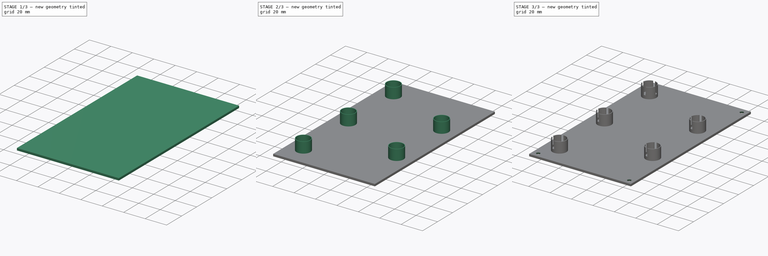
[diagram: build sequence overview — one tinted view per stage of 3, left to right]
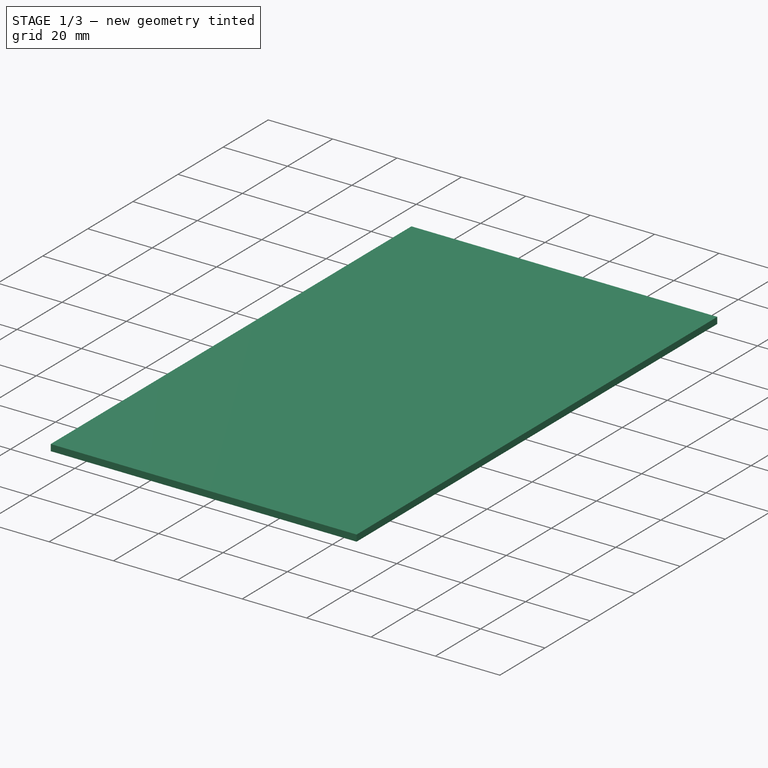
[diagram: stage 1 of 3 — iso view after this stage's code; geometry added in this stage tinted green]
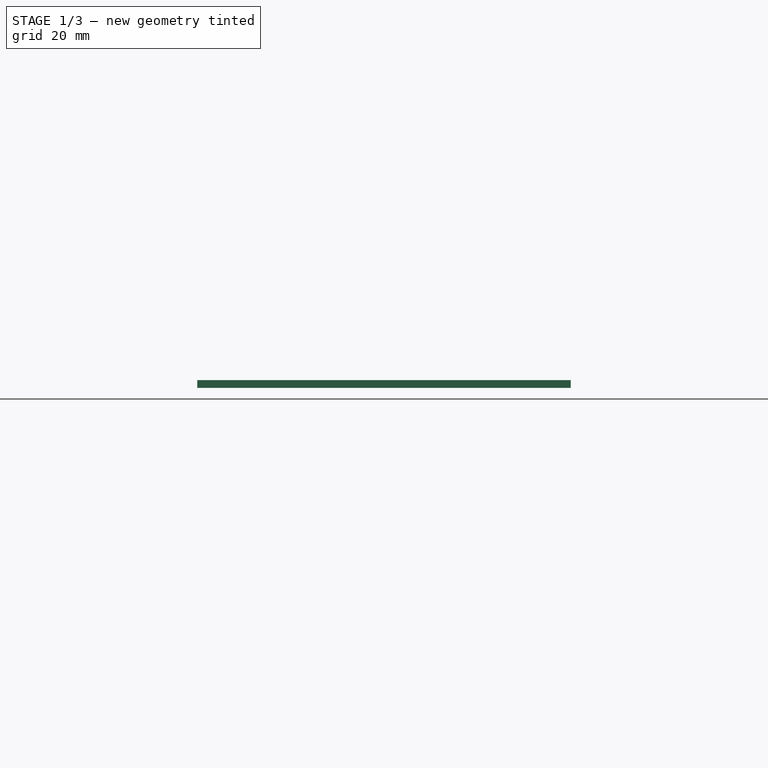
[diagram: stage 1 of 3 — front view after this stage's code; geometry added in this stage tinted green]
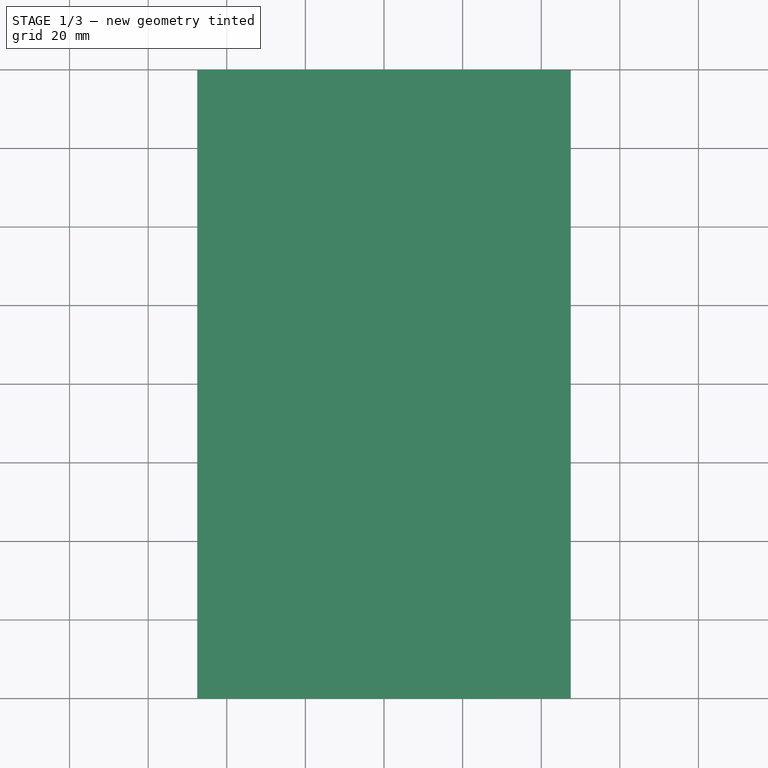
[diagram: stage 1 of 3 — top view after this stage's code; geometry added in this stage tinted green]
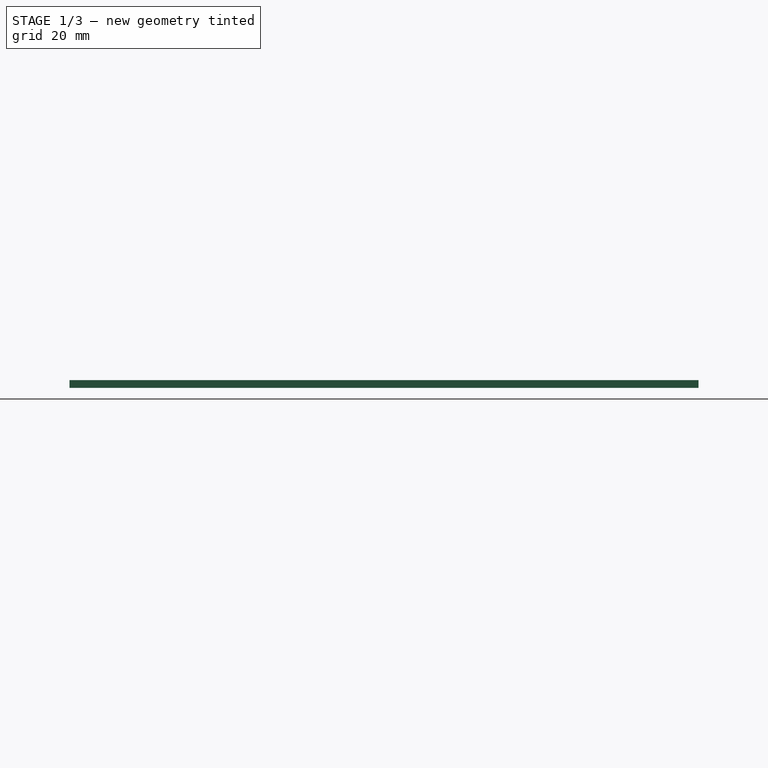
[diagram: stage 1 of 3 — right view after this stage's code; geometry added in this stage tinted green]
FCSTD DOCUMENT  (FreeCAD 0.19R23578 (Git))
Label: nudge_lamp_holder_2
License: All rights reserved
LicenseURL: http://en.wikipedia.org/wiki/All_rights_reserved
objects: Sketcher::SketchObject×8, PartDesign::Pad×3, PartDesign::Pocket×3, PartDesign::Hole×2, PartDesign::Body×1
note: 25 computed .brp shape members not serialized (recipe doc carries the construction recipe); baked Part::Feature solids carry a one-line shape summary decoded from their .brp

FEATURE [Sketcher::SketchObject] Sketch
  MapMode = 5
  Support = -> [XY_Plane]
  sketch-geometry (4):
    g0: LineSegment StartX=-47.5 StartY=80 StartZ=0 EndX=47.5 EndY=80 EndZ=0
    g1: LineSegment StartX=47.5 StartY=80 StartZ=0 EndX=47.5 EndY=-80 EndZ=0
    g2: LineSegment StartX=47.5 StartY=-80 StartZ=0 EndX=-47.5 EndY=-80 EndZ=0
    g3: LineSegment StartX=-47.5 StartY=-80 StartZ=0 EndX=-47.5 EndY=80 EndZ=0
  constraints (10):
    c: Coincident(g0,g1)
    c: Coincident(g1,g2)
    c: Coincident(g2,g3)
    c: Coincident(g3,g0)
    c: DistanceX(g0,g0) = 95
    c: DistanceY(g1,g1) = 160
    c: Equal(g3,g1)
    c: Equal(g0,g2)
    c: Symmetric(g0,g2,g-1)
    c: Symmetric(g0,g0,g-2)
FEATURE [PartDesign::Pad] Pad
  Direction = (1,1,1)
  Length = 1
  Length2 = 100
  Profile = -> Sketch
  Type = 0
FEATURE [Sketcher::SketchObject] Sketch001
  ExternalGeometry = -> [Pad]
  MapMode = 5
  Placement = pos=(0,0,1) rot=(0,0,1;0rad)
  Support = -> [Pad]
  expr: Constraints[8] = 141 - 75
  expr: Constraints[5] = 141 - 75
  sketch-geometry (5):
    g0: Circle CenterX=-32.5 CenterY=59 CenterZ=0 NormalX=0 NormalY=0 NormalZ=1 AngleXU=0 Radius=11.5
    g1: Circle CenterX=-32.5 CenterY=-1 CenterZ=0 NormalX=0 NormalY=0 NormalZ=1 AngleXU=0 Radius=11.5
    g2: Circle CenterX=-32.5 CenterY=-61 CenterZ=0 NormalX=0 NormalY=0 NormalZ=1 AngleXU=0 Radius=11.5
    g3: Circle CenterX=33.5 CenterY=29 CenterZ=0 NormalX=0 NormalY=0 NormalZ=1 AngleXU=0 Radius=11.5
    g4: Circle CenterX=33.5 CenterY=-31 CenterZ=0 NormalX=0 NormalY=0 NormalZ=1 AngleXU=0 Radius=11.5
  constraints (15):
    c: Diameter(g0) = 23
    c: Equal(g0,g1) = 23
    c: Equal(g0,g2) = 23
    c: Equal(g0,g3) = 23
    c: Equal(g0,g4) = 23
    c: DistanceX(g0,g3) = 66
    c: DistanceX(g0,g1) = 0
    c: DistanceX(g1,g2) = 0
    c: DistanceX(g1,g4) = 66
    c: DistanceY(g1,g0) = 60
    c: DistanceY(g2,g1) = 60
    c: DistanceY(g4,g3) = 60
    c: DistanceY(g2,g4) = 30
    c: DistanceX(g-4,g0) = 15
    c: DistanceY(g0,g-4) = 21
FEATURE [PartDesign::Pocket] Pocket
  BaseFeature = -> Pad
  Length = 1
  Length2 = 100
  Profile = -> Sketch001
  Type = 0
FEATURE [Sketcher::SketchObject] Sketch002
  ExternalGeometry = -> [Pocket]
  MapMode = 5
  Placement = pos=(0,0,1) rot=(0,0,1;0rad)
  Support = -> [Pocket]
  sketch-geometry (4):
    g0: LineSegment StartX=-47.5 StartY=80 StartZ=0 EndX=47.5 EndY=80 EndZ=0
    g1: LineSegment StartX=47.5 StartY=80 StartZ=0 EndX=47.5 EndY=-80 EndZ=0
    g2: LineSegment StartX=47.5 StartY=-80 StartZ=0 EndX=-47.5 EndY=-80 EndZ=0
    g3: LineSegment StartX=-47.5 StartY=-80 StartZ=0 EndX=-47.5 EndY=80 EndZ=0
  constraints (10):
    c: Coincident(g0,g1)
    c: Coincident(g1,g2)
    c: Coincident(g2,g3)
    c: Coincident(g3,g0)
    c: Horizontal(g0)
    c: Horizontal(g2)
    c: Vertical(g1)
    c: Vertical(g3)
    c: Coincident(g0,g-5)
    c: Coincident(g1,g-6)
FEATURE [PartDesign::Pad] Pad001
  BaseFeature = -> Pocket
  Direction = (1,1,1)
  Length = 1
  Length2 = 100
  Profile = -> Sketch002
  Type = 0
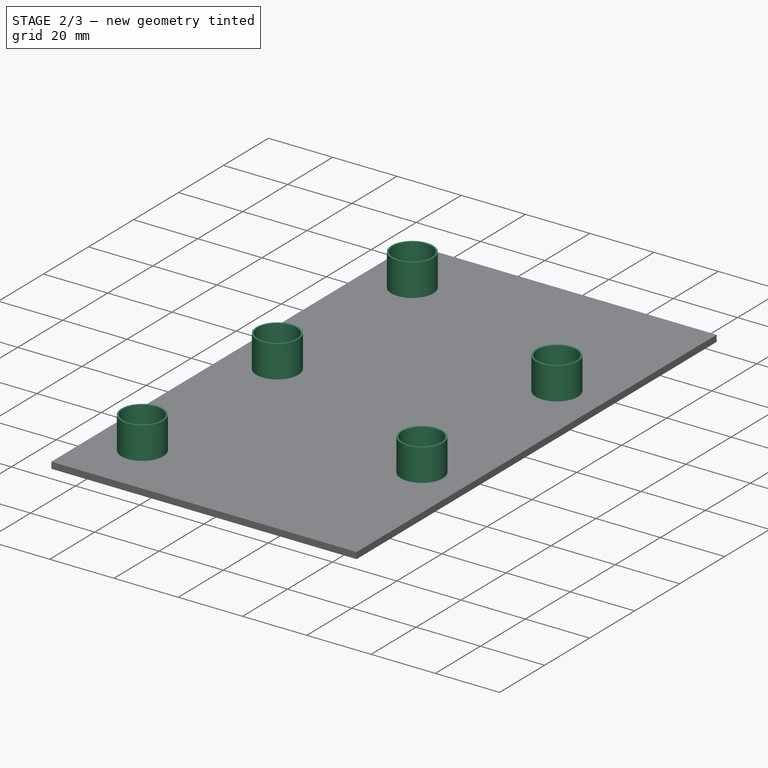
[diagram: stage 2 of 3 — iso view after this stage's code; geometry added in this stage tinted green]
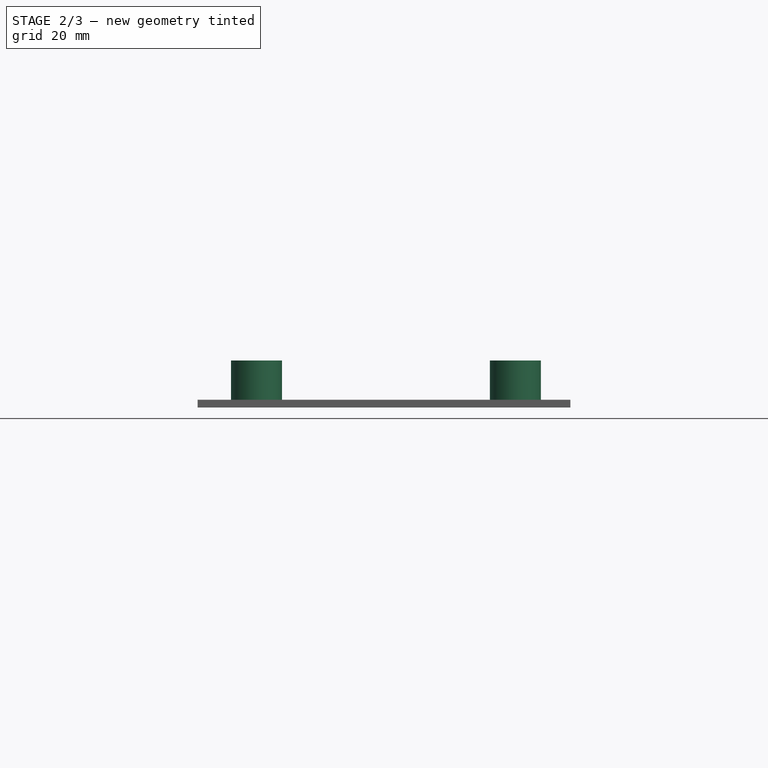
[diagram: stage 2 of 3 — front view after this stage's code; geometry added in this stage tinted green]
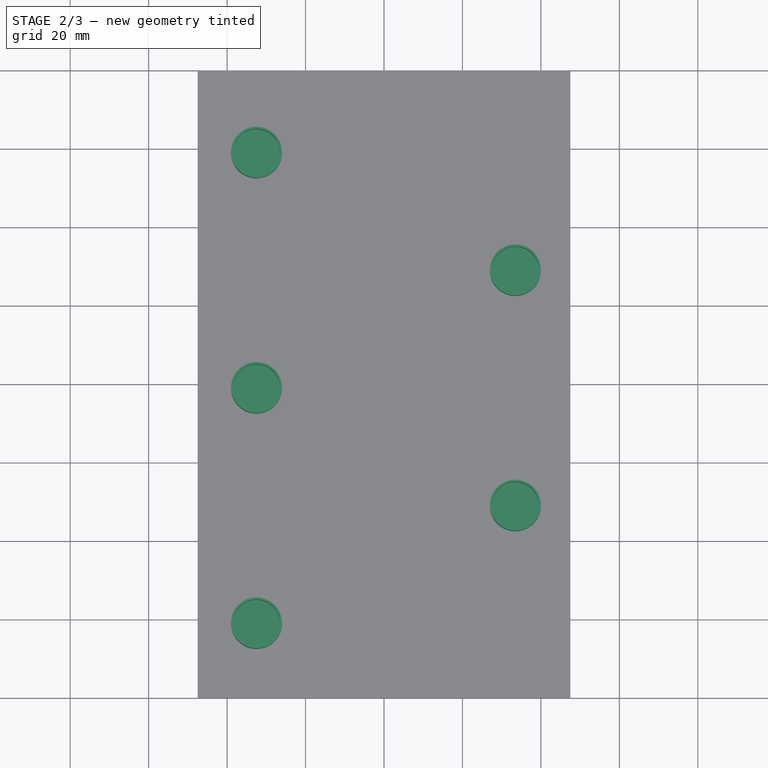
[diagram: stage 2 of 3 — top view after this stage's code; geometry added in this stage tinted green]
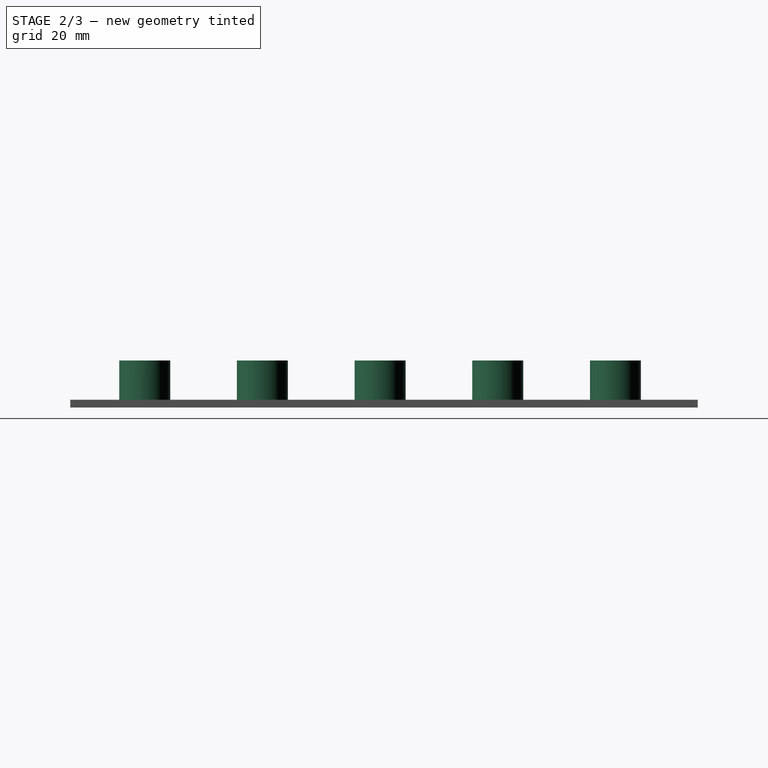
[diagram: stage 2 of 3 — right view after this stage's code; geometry added in this stage tinted green]
FEATURE [Sketcher::SketchObject] Sketch003
  ExternalGeometry = -> [Pad001]
  MapMode = 5
  Placement = pos=(0,0,2) rot=(0,0,1;0rad)
  Support = -> [Pad001]
  sketch-geometry (5):
    g0: Circle CenterX=-32.5 CenterY=59 CenterZ=0 NormalX=0 NormalY=0 NormalZ=1 AngleXU=0 Radius=6.5
    g1: Circle CenterX=-32.5 CenterY=-1 CenterZ=0 NormalX=0 NormalY=0 NormalZ=1 AngleXU=0 Radius=6.5
    g2: Circle CenterX=33.5 CenterY=29 CenterZ=0 NormalX=0 NormalY=0 NormalZ=1 AngleXU=0 Radius=6.5
    g3: Circle CenterX=33.5 CenterY=-31 CenterZ=0 NormalX=0 NormalY=0 NormalZ=1 AngleXU=0 Radius=6.5
    g4: Circle CenterX=-32.5 CenterY=-61 CenterZ=0 NormalX=0 NormalY=0 NormalZ=1 AngleXU=0 Radius=6.5
  constraints (10):
    c: Coincident(g0,g-3)
    c: Diameter(g0) = 13
    c: Equal(g0,g1) = 13
    c: Coincident(g1,g-5)
    c: Equal(g0,g2) = 13
    c: Coincident(g2,g-4)
    c: Equal(g0,g3) = 13
    c: Coincident(g3,g-6)
    c: Equal(g0,g4) = 13
    c: Coincident(g4,g-7)
FEATURE [PartDesign::Pad] Pad002
  BaseFeature = -> Pad001
  Direction = (1,1,1)
  Length = 10
  Length2 = 100
  Profile = -> Sketch003
  Type = 0
FEATURE [Sketcher::SketchObject] Sketch004
  ExternalGeometry = -> [Pad002]
  MapMode = 5
  Placement = pos=(0,0,12) rot=(0,0,1;0rad)
  Support = -> [Pad002]
  sketch-geometry (5):
    g0: Circle CenterX=-32.5 CenterY=59 CenterZ=0 NormalX=0 NormalY=0 NormalZ=1 AngleXU=0 Radius=6
    g1: Circle CenterX=33.5 CenterY=29 CenterZ=0 NormalX=0 NormalY=0 NormalZ=1 AngleXU=0 Radius=6
    g2: Circle CenterX=-32.5 CenterY=-1 CenterZ=0 NormalX=0 NormalY=0 NormalZ=1 AngleXU=0 Radius=6
    g3: Circle CenterX=33.5 CenterY=-31 CenterZ=0 NormalX=0 NormalY=0 NormalZ=1 AngleXU=0 Radius=6
    g4: Circle CenterX=-32.5 CenterY=-61 CenterZ=0 NormalX=0 NormalY=0 NormalZ=1 AngleXU=0 Radius=6
  constraints (10):
    c: Coincident(g0,g-7)
    c: Diameter(g0) = 12
    c: Equal(g0,g1) = 12
    c: Coincident(g1,g-8)
    c: Equal(g0,g2) = 12
    c: Coincident(g2,g-9)
    c: Equal(g0,g3) = 12
    c: Coincident(g3,g-10)
    c: Equal(g0,g4) = 12
    c: Coincident(g4,g-11)
FEATURE [PartDesign::Pocket] Pocket001
  BaseFeature = -> Pad002
  Length = 9
  Length2 = 100
  Profile = -> Sketch004
  Type = 0
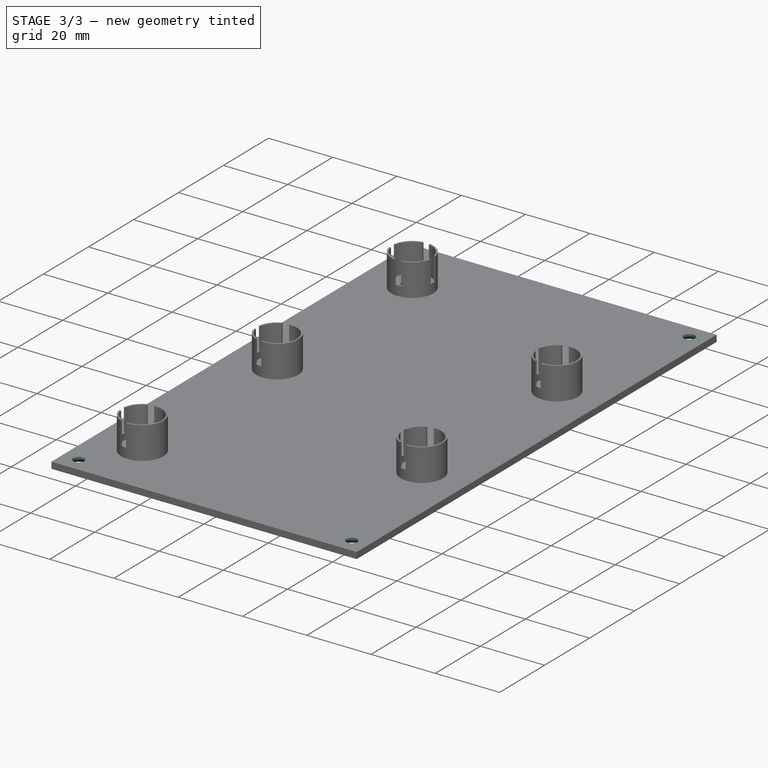
[diagram: stage 3 of 3 — iso view after this stage's code; geometry added in this stage tinted green]
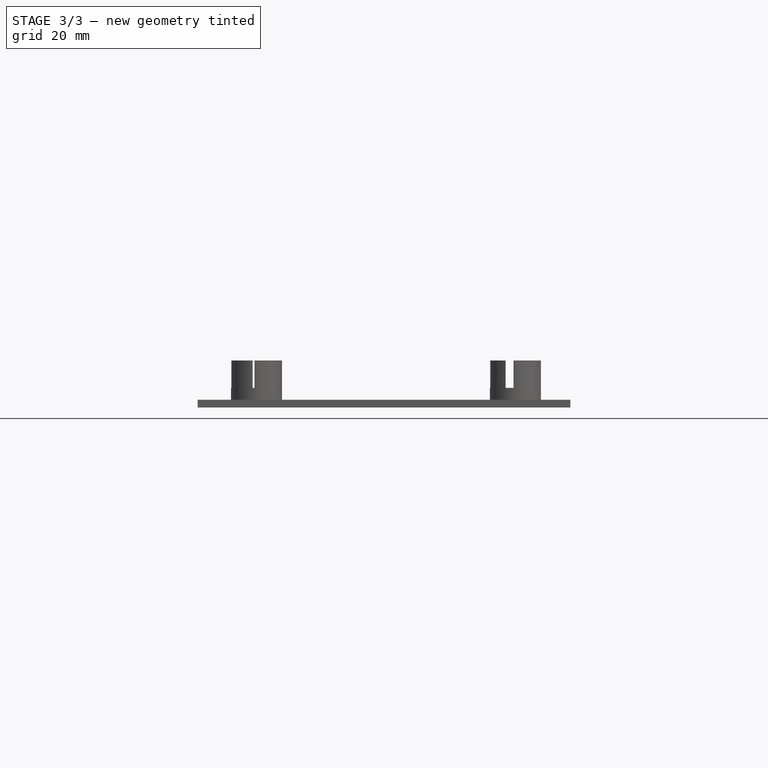
[diagram: stage 3 of 3 — front view after this stage's code; geometry added in this stage tinted green]
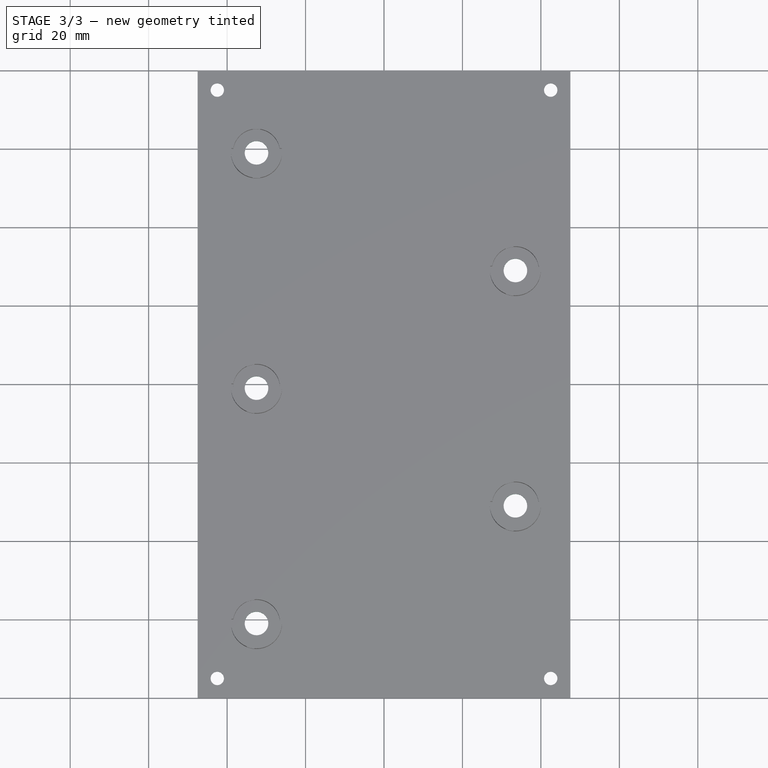
[diagram: stage 3 of 3 — top view after this stage's code; geometry added in this stage tinted green]
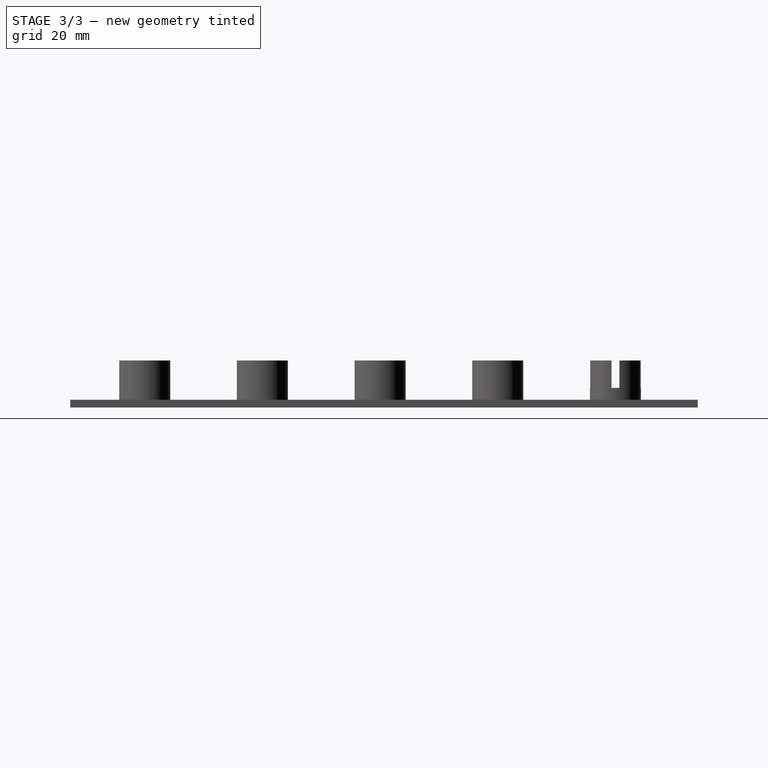
[diagram: stage 3 of 3 — right view after this stage's code; geometry added in this stage tinted green]
FEATURE [Sketcher::SketchObject] Sketch005
  ExternalGeometry = -> [Pocket001]
  MapMode = 5
  Placement = pos=(0,0,3) rot=(0,0,1;0rad)
  Support = -> [Pocket001]
  sketch-geometry (5):
    g0: Circle CenterX=-32.5 CenterY=59 CenterZ=0 NormalX=0 NormalY=0 NormalZ=1 AngleXU=0 Radius=5
    g1: Circle CenterX=33.5 CenterY=29 CenterZ=0 NormalX=0 NormalY=0 NormalZ=1 AngleXU=0 Radius=5
    g2: Circle CenterX=-32.5 CenterY=-1 CenterZ=0 NormalX=0 NormalY=0 NormalZ=1 AngleXU=0 Radius=5
    g3: Circle CenterX=33.5 CenterY=-31 CenterZ=0 NormalX=0 NormalY=0 NormalZ=1 AngleXU=0 Radius=5
    g4: Circle CenterX=-32.5 CenterY=-61 CenterZ=0 NormalX=0 NormalY=0 NormalZ=1 AngleXU=0 Radius=5
  constraints (10):
    c: Coincident(g0,g-6)
    c: Diameter(g0) = 10
    c: Equal(g0,g1) = 10
    c: Coincident(g1,g-7)
    c: Equal(g0,g2) = 10
    c: Coincident(g2,g-8)
    c: Equal(g0,g3) = 10
    c: Coincident(g3,g-9)
    c: Equal(g0,g4) = 10
    c: Coincident(g4,g-10)
FEATURE [PartDesign::Hole] Hole
  BaseFeature = -> Pocket001
  Depth = 25
  DepthType = 0
  Diameter = 6
  DrillPoint = 1
  DrillPointAngle = 118
  HoleCutCountersinkAngle = 90
  HoleCutDepth = 0
  HoleCutDiameter = 0
  HoleCutType = 0
  ModelActualThread = false
  Profile = -> Sketch005
  Tapered = false
  TaperedAngle = 90
  ThreadAngle = 0
  ThreadClass = 0
  ThreadCutOffInner = 0
  ThreadCutOffOuter = 0
  ThreadDirection = 0
  ThreadFit = 0
  ThreadPitch = 0
  ThreadSize = 0
  ThreadType = 0
  Threaded = false
FEATURE [Sketcher::SketchObject] Sketch006
  ExternalGeometry = -> [Hole]
  MapMode = 5
  Placement = pos=(0,0,0) rot=(1,0,0;3.14159rad)
  Support = -> [Hole]
  sketch-geometry (4):
    g0: Circle CenterX=-42.5 CenterY=75 CenterZ=0 NormalX=0 NormalY=0 NormalZ=1 AngleXU=0 Radius=2
    g1: Circle CenterX=42.5 CenterY=75 CenterZ=0 NormalX=0 NormalY=0 NormalZ=1 AngleXU=0 Radius=2
    g2: Circle CenterX=-42.5 CenterY=-75 CenterZ=0 NormalX=0 NormalY=0 NormalZ=1 AngleXU=0 Radius=2
    g3: Circle CenterX=42.5 CenterY=-75 CenterZ=0 NormalX=0 NormalY=0 NormalZ=1 AngleXU=0 Radius=2
  constraints (12):
    c: DistanceX(g-4,g0) = 5
    c: DistanceY(g0,g-4) = 5
    c: DistanceY(g-6,g2) = 5
    c: DistanceX(g-6,g2) = 5
    c: DistanceX(g3,g-6) = 5
    c: DistanceY(g-6,g3) = 5
    c: DistanceY(g1,g-5) = 5
    c: DistanceX(g1,g-5) = 5
    c: Diameter(g0) = 4
    c: Diameter(g1) = 4
    c: Diameter(g3) = 4
    c: Diameter(g2) = 4
FEATURE [PartDesign::Hole] Hole001
  BaseFeature = -> Hole
  Depth = 25
  DepthType = 0
  Diameter = 3.4
  DrillPoint = 1
  DrillPointAngle = 118
  HoleCutCountersinkAngle = 90
  HoleCutDepth = 0
  HoleCutDiameter = 6
  HoleCutType = 2
  ModelActualThread = false
  Profile = -> Sketch006
  Tapered = false
  TaperedAngle = 90
  ThreadAngle = 0
  ThreadClass = 0
  ThreadCutOffInner = 0
  ThreadCutOffOuter = 0
  ThreadDirection = 0
  ThreadFit = 0
  ThreadPitch = 0
  ThreadSize = 9
  ThreadType = 1
  Threaded = false
FEATURE [Sketcher::SketchObject] Sketch007
  ExternalGeometry = -> [Hole001]
  MapMode = 5
  Placement = pos=(0,0,12) rot=(0,0,1;0rad)
  Support = -> [Hole001]
  sketch-geometry (40):
    g0: LineSegment StartX=-33.5 StartY=66.5 StartZ=0 EndX=-31.5 EndY=66.5 EndZ=0
    g1: LineSegment StartX=-31.5 StartY=66.5 StartZ=0 EndX=-31.5 EndY=51.5 EndZ=0
    g2: LineSegment StartX=-31.5 StartY=51.5 StartZ=0 EndX=-33.5 EndY=51.5 EndZ=0
    g3: LineSegment StartX=-33.5 StartY=51.5 StartZ=0 EndX=-33.5 EndY=66.5 EndZ=0
    g4: LineSegment StartX=-40 StartY=60 StartZ=0 EndX=-25 EndY=60 EndZ=0
    g5: LineSegment StartX=-25 StartY=60 StartZ=0 EndX=-25 EndY=58 EndZ=0
    g6: LineSegment StartX=-25 StartY=58 StartZ=0 EndX=-40 EndY=58 EndZ=0
    g7: LineSegment StartX=-40 StartY=58 StartZ=0 EndX=-40 EndY=60 EndZ=0
    g8: LineSegment StartX=31 StartY=36.5 StartZ=0 EndX=33 EndY=36.5 EndZ=0
    g9: LineSegment StartX=33 StartY=36.5 StartZ=0 EndX=33 EndY=21.5 EndZ=0
    g10: LineSegment StartX=33 StartY=21.5 StartZ=0 EndX=31 EndY=21.5 EndZ=0
    g11: LineSegment StartX=31 StartY=21.5 StartZ=0 EndX=31 EndY=36.5 EndZ=0
    g12: LineSegment StartX=24.5 StartY=29.9997 StartZ=0 EndX=39.5 EndY=29.9997 EndZ=0
    g13: LineSegment StartX=39.5 StartY=29.9997 StartZ=0 EndX=39.5 EndY=27.9997 EndZ=0
    g14: LineSegment StartX=39.5 StartY=27.9997 StartZ=0 EndX=24.5 EndY=27.9997 EndZ=0
    g15: LineSegment StartX=24.5 StartY=27.9997 StartZ=0 EndX=24.5 EndY=29.9997 EndZ=0
    g16: LineSegment StartX=-35 StartY=6.5 StartZ=0 EndX=-33 EndY=6.5 EndZ=0
    g17: LineSegment StartX=-33 StartY=6.5 StartZ=0 EndX=-33 EndY=-8.5 EndZ=0
    g18: LineSegment StartX=-33 StartY=-8.5 StartZ=0 EndX=-35 EndY=-8.5 EndZ=0
    g19: LineSegment StartX=-35 StartY=-8.5 StartZ=0 EndX=-35 EndY=6.5 EndZ=0
    g20: LineSegment StartX=-41.5 StartY=-0.000344726 StartZ=0 EndX=-26.5 EndY=-0.000344726 EndZ=0
    g21: LineSegment StartX=-26.5 StartY=-0.000344726 StartZ=0 EndX=-26.5 EndY=-2.00034 EndZ=0
    g22: LineSegment StartX=-26.5 StartY=-2.00034 StartZ=0 EndX=-41.5 EndY=-2.00034 EndZ=0
    g23: LineSegment StartX=-41.5 StartY=-2.00034 StartZ=0 EndX=-41.5 EndY=-0.000344726 EndZ=0
    g24: LineSegment StartX=31 StartY=-23.5 StartZ=0 EndX=33 EndY=-23.5 EndZ=0
    g25: LineSegment StartX=33 StartY=-23.5 StartZ=0 EndX=33 EndY=-38.5 EndZ=0
    g26: LineSegment StartX=33 StartY=-38.5 StartZ=0 EndX=31 EndY=-38.5 EndZ=0
    g27: LineSegment StartX=31 StartY=-38.5 StartZ=0 EndX=31 EndY=-23.5 EndZ=0
    g28: LineSegment StartX=24.5 StartY=-30 StartZ=0 EndX=39.5 EndY=-30 EndZ=0
    g29: LineSegment StartX=39.5 StartY=-30 StartZ=0 EndX=39.5 EndY=-32 EndZ=0
    g30: LineSegment StartX=39.5 StartY=-32 StartZ=0 EndX=24.5 EndY=-32 EndZ=0
    g31: LineSegment StartX=24.5 StartY=-32 StartZ=0 EndX=24.5 EndY=-30 EndZ=0
    g32: LineSegment StartX=-35 StartY=-53.5 StartZ=0 EndX=-33 EndY=-53.5 EndZ=0
    g33: LineSegment StartX=-33 StartY=-53.5 StartZ=0 EndX=-33 EndY=-68.5 EndZ=0
    g34: LineSegment StartX=-33 StartY=-68.5 StartZ=0 EndX=-35 EndY=-68.5 EndZ=0
    g35: LineSegment StartX=-35 StartY=-68.5 StartZ=0 EndX=-35 EndY=-53.5 EndZ=0
    g36: LineSegment StartX=-41.5 StartY=-60.0003 StartZ=0 EndX=-26.5 EndY=-60.0003 EndZ=0
    g37: LineSegment StartX=-26.5 StartY=-60.0003 StartZ=0 EndX=-26.5 EndY=-62.0003 EndZ=0
    g38: LineSegment StartX=-26.5 StartY=-62.0003 StartZ=0 EndX=-41.5 EndY=-62.0003 EndZ=0
    g39: LineSegment StartX=-41.5 StartY=-62.0003 StartZ=0 EndX=-41.5 EndY=-60.0003 EndZ=0
  constraints (108):
    c: Coincident(g0,g1)
    c: Coincident(g1,g2)
    c: Coincident(g2,g3)
    c: Coincident(g3,g0)
    c: Horizontal(g0)
    c: Vertical(g1)
    c: Equal(g0,g2)
    c: Equal(g3,g1)
    c: Coincident(g4,g5)
    c: Coincident(g5,g6)
    c: Coincident(g6,g7)
    c: Coincident(g7,g4)
    c: Horizontal(g4)
    c: Vertical(g5)
    c: Equal(g7,g5)
    c: Equal(g4,g6)
    c: Equal(g7,g0)
    c: Equal(g4,g3)
    c: Distance(g3) = 15
    c: DistanceY(g-3,g0) = 7.5
    c: DistanceX(g4,g-3) = 7.5
    c: Distance(g7) = 2
    c: DistanceY(g-3,g4) = 1
    c: DistanceX(g0,g-3) = 1
    c: Coincident(g8,g9)
    c: Coincident(g9,g10)
    c: Coincident(g10,g11)
    c: Coincident(g11,g8)
    c: Horizontal(g8)
    c: Vertical(g9)
    c: Equal(g8,g10)
    c: Equal(g11,g9)
    c: Coincident(g12,g13)
    c: Coincident(g13,g14)
    c: Coincident(g14,g15)
    c: Coincident(g15,g12)
    c: Horizontal(g12)
    c: Vertical(g13)
    c: Equal(g15,g13)
    c: Equal(g12,g14)
    c: Equal(g15,g8)
    c: Equal(g12,g11)
    c: Equal(g3,g11) = 15
    c: Equal(g7,g15) = 2
    c: Coincident(g15,g-4)
    c: Coincident(g16,g17)
    c: Coincident(g17,g18)
    c: Coincident(g18,g19)
    c: Coincident(g19,g16)
    c: Horizontal(g16)
    c: Vertical(g17)
    c: Equal(g16,g18)
    c: Equal(g19,g17)
    c: Coincident(g20,g21)
    c: Coincident(g21,g22)
    c: Coincident(g22,g23)
    c: Coincident(g23,g20)
    c: Horizontal(g20)
    c: Vertical(g21)
    c: Equal(g23,g21)
    c: Equal(g20,g22)
    c: Equal(g23,g16)
    c: Equal(g20,g19)
    c: Equal(g3,g19) = 15
    c: Equal(g7,g23) = 2
    c: Coincident(g23,g-5)
    c: Coincident(g24,g25)
    c: Coincident(g25,g26)
    c: Coincident(g26,g27)
    c: Coincident(g27,g24)
    c: Horizontal(g24)
    c: Vertical(g25)
    c: Equal(g24,g26)
    c: Equal(g27,g25)
    c: Coincident(g28,g29)
    c: Coincident(g29,g30)
    c: Coincident(g30,g31)
    c: Coincident(g31,g28)
    c: Horizontal(g28)
    c: Vertical(g29)
    c: Equal(g31,g29)
    c: Equal(g28,g30)
    c: Equal(g31,g24)
    c: Equal(g28,g27)
    c: Equal(g3,g27) = 15
    c: Equal(g7,g31) = 2
    c: Coincident(g31,g-6)
    c: Coincident(g32,g33)
    c: Coincident(g33,g34)
    c: Coincident(g34,g35)
    c: Coincident(g35,g32)
    c: Horizontal(g32)
    c: Vertical(g33)
    c: Equal(g32,g34)
    c: Equal(g35,g33)
    c: Coincident(g36,g37)
    c: Coincident(g37,g38)
    c: Coincident(g38,g39)
    c: Coincident(g39,g36)
    c: Horizontal(g36)
    c: Vertical(g37)
    c: Equal(g39,g37)
    c: Equal(g36,g38)
    c: Equal(g39,g32)
    c: Equal(g36,g35)
    c: Equal(g3,g35) = 15
    c: Equal(g7,g39) = 2
    c: Coincident(g39,g-7)
FEATURE [PartDesign::Pocket] Pocket002
  BaseFeature = -> Hole001
  Length = 7
  Length2 = 100
  Profile = -> Sketch007
  Type = 0
FEATURE [PartDesign::Body] Body
  Group = -> [Sketch,Pad,Sketch001,Pocket,Sketch002,Pad001,Sketch003,Pad002,Sketch004,Pocket001,Sketch005,Hole,Sketch006,Hole001,Sketch007,Pocket002]
  Origin = -> Origin
  Tip = -> Pocket002
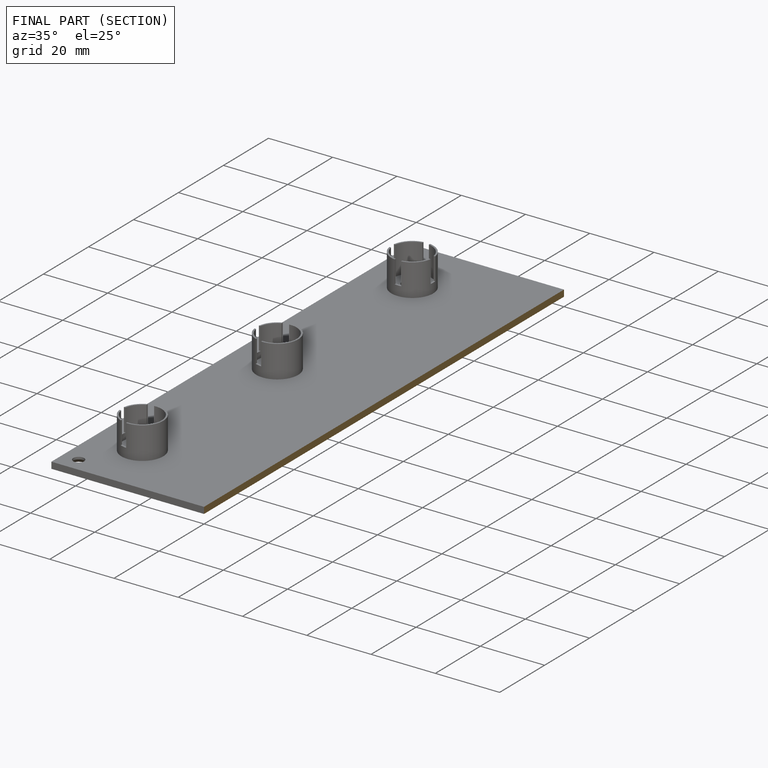
[diagram: finished part — half-section view (interior)]
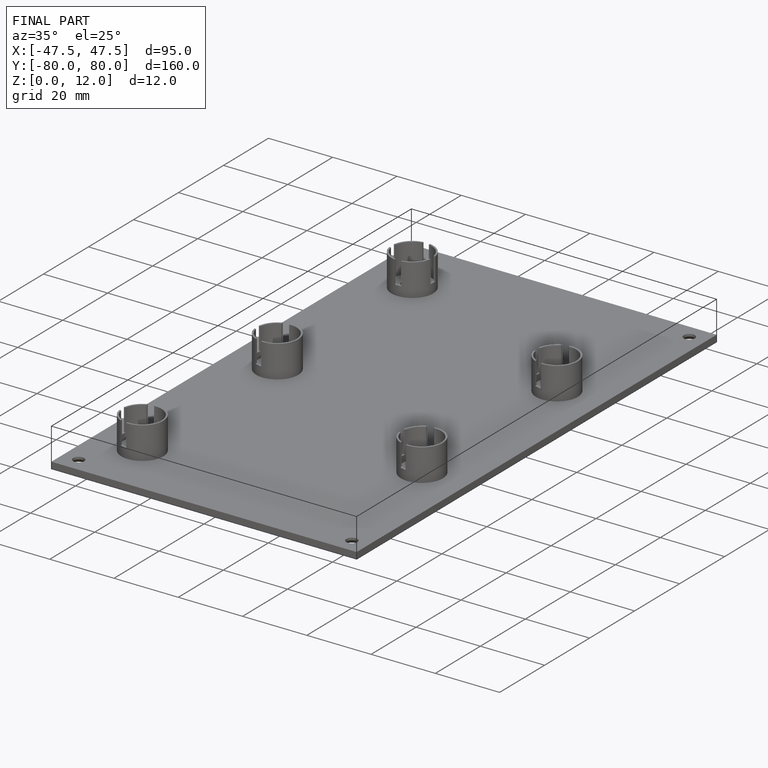
[diagram: finished part — iso view with bounding-box wireframe]
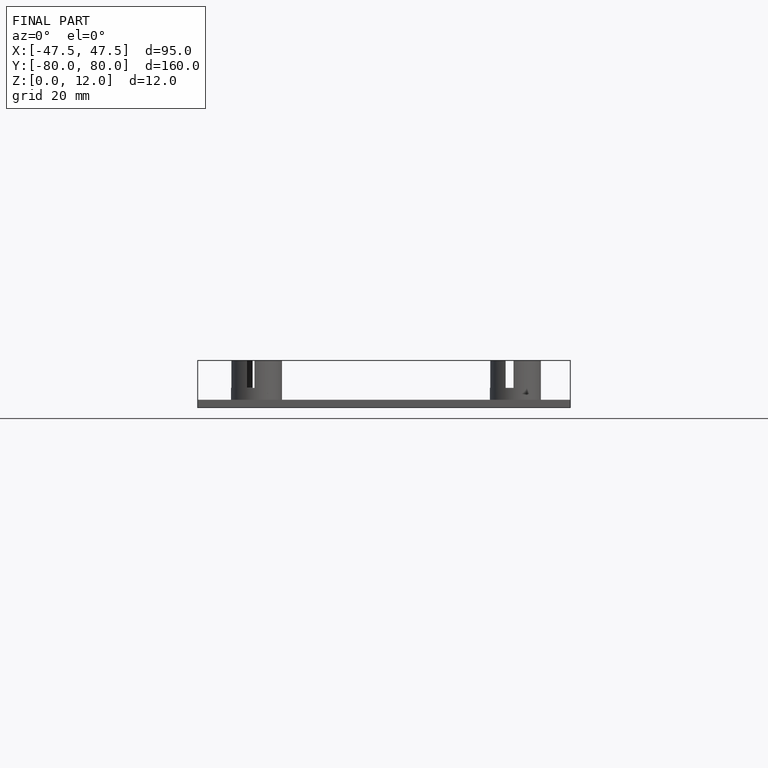
[diagram: finished part — front view with bounding-box wireframe]
